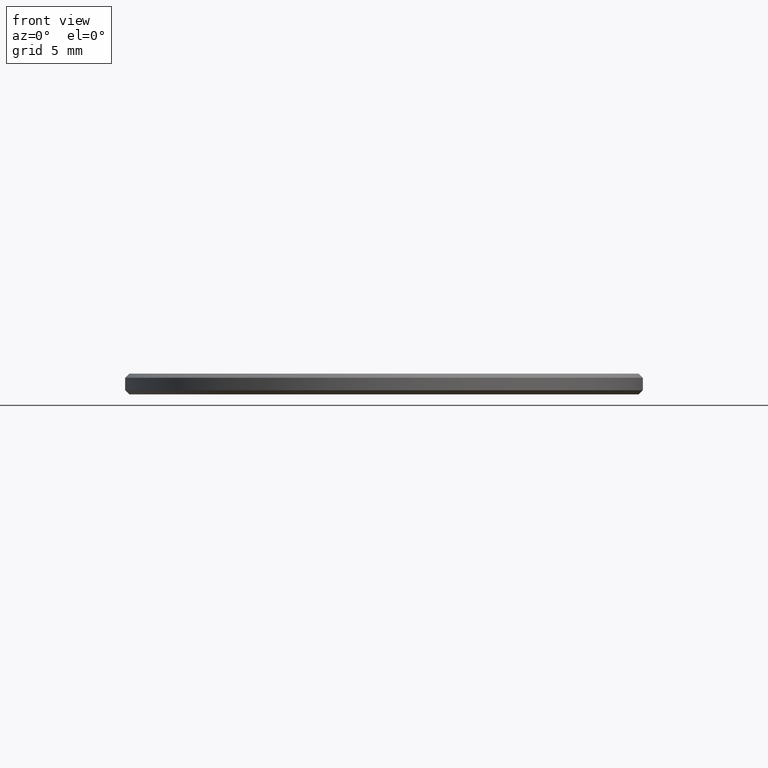
[diagram: clean part render]
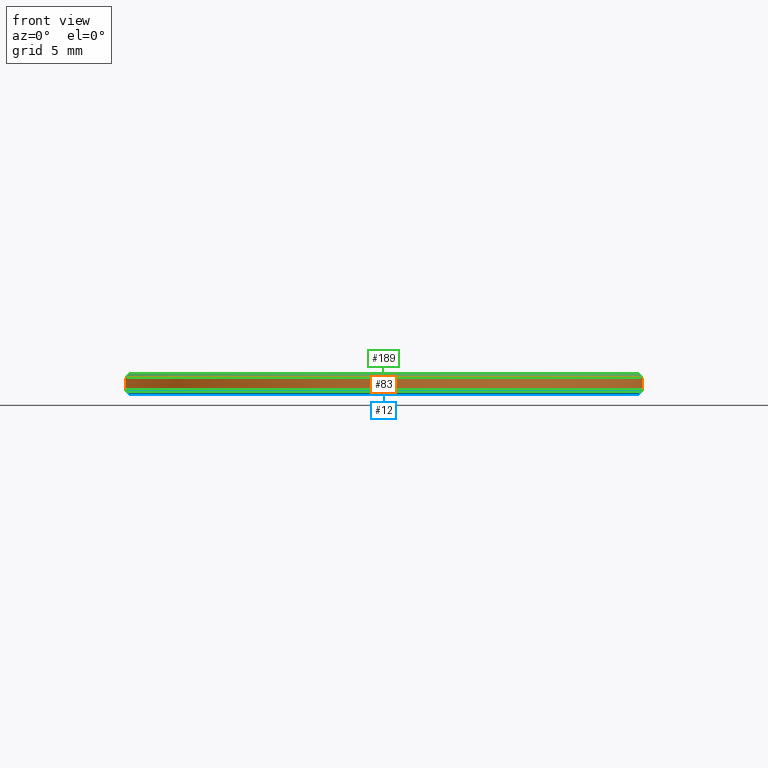
[diagram: same view with three faces highlighted in distinct colors, each labeled with its STEP entity id]
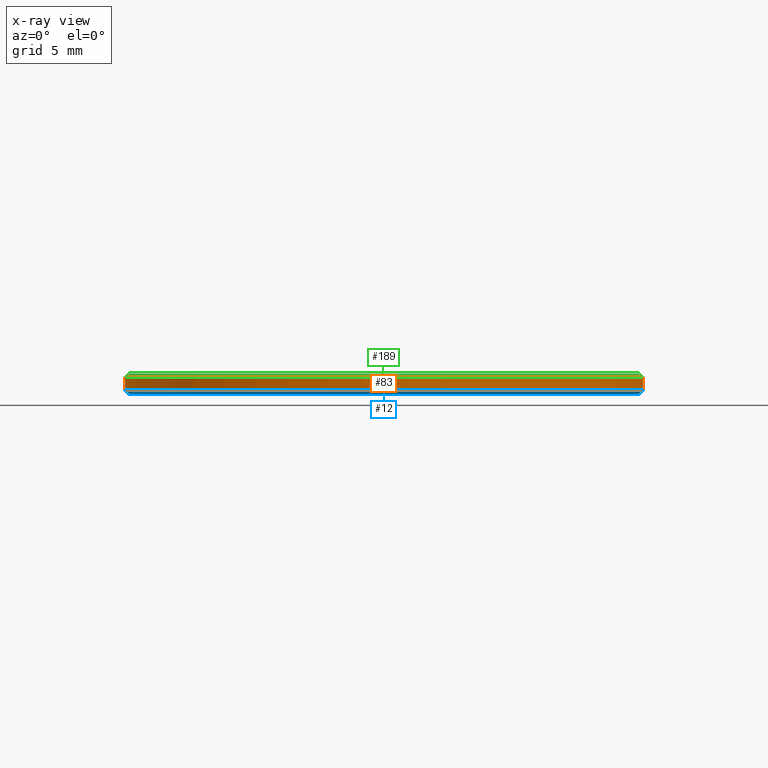
[diagram: x-ray of the same camera — body ghosted, the three highlighted faces saturated]
A machine part, front view with three faces highlighted in distinct colors.
The next image is the same camera in x-ray (body ghosted, the three faces saturated) — at least one of them is partly hidden behind the body in this view.
Their STEP definitions:

[orange] entity #83 — the highlighted cylindrical surface (partial cylindrical patch) has radius 12.5 mm, axis along (-0, -0, -1).
#5 = DIRECTION ( 'NONE',  ( 0.000000000000000000, 0.000000000000000000, -1.000000000000000000 ) ) ;
#6 = DIRECTION ( 'NONE',  ( 1.000000000000000000, 0.000000000000000000, 0.000000000000000000 ) ) ;
#7 = CIRCLE ( 'NONE', #60, 12.50000000000000000 ) ;
#23 = VERTEX_POINT ( 'NONE', #94 ) ;
#26 = CARTESIAN_POINT ( 'NONE',  ( 0.000000000000000000, 0.000000000000000000, 1.000000000000000000 ) ) ;
#31 = VECTOR ( 'NONE', #169, 1000.000000000000000 ) ;
#33 = AXIS2_PLACEMENT_3D ( 'NONE', #26, #139, #101 ) ;
#42 = CARTESIAN_POINT ( 'NONE',  ( -12.50000000000000000, 0.000000000000000000, 1.000000000000000000 ) ) ;
#45 = EDGE_CURVE ( 'NONE', #115, #92, #98, .T. ) ;
#46 = AXIS2_PLACEMENT_3D ( 'NONE', #208, #5, #89 ) ;
#51 = DIRECTION ( 'NONE',  ( -0.000000000000000000, -0.000000000000000000, -1.000000000000000000 ) ) ;
#55 = ORIENTED_EDGE ( 'NONE', *, *, #69, .F. ) ;
#60 = AXIS2_PLACEMENT_3D ( 'NONE', #116, #68, #6 ) ;
#64 = EDGE_CURVE ( 'NONE', #92, #240, #7, .T. ) ;
#65 = CYLINDRICAL_SURFACE ( 'NONE', #33, 12.50000000000000000 ) ;
#68 = DIRECTION ( 'NONE',  ( -0.000000000000000000, -0.000000000000000000, 1.000000000000000000 ) ) ;
#69 = EDGE_CURVE ( 'NONE', #23, #240, #230, .T. ) ;
#73 = ORIENTED_EDGE ( 'NONE', *, *, #64, .T. ) ;
#83 = ADVANCED_FACE ( 'NONE', ( #140 ), #65, .T. ) ;
#89 = DIRECTION ( 'NONE',  ( 1.000000000000000000, 0.000000000000000000, 0.000000000000000000 ) ) ;
#90 = ORIENTED_EDGE ( 'NONE', *, *, #45, .T. ) ;
#91 = CIRCLE ( 'NONE', #46, 12.50000000000000000 ) ;
#92 = VERTEX_POINT ( 'NONE', #171 ) ;
#94 = CARTESIAN_POINT ( 'NONE',  ( 12.50000000000000000, 1.530808498934191521E-15, 0.8000000000000029310 ) ) ;
#98 = LINE ( 'NONE', #42, #31 ) ;
#101 = DIRECTION ( 'NONE',  ( -1.000000000000000000, 0.000000000000000000, 0.000000000000000000 ) ) ;
#115 = VERTEX_POINT ( 'NONE', #190 ) ;
#116 = CARTESIAN_POINT ( 'NONE',  ( 0.000000000000000000, 0.000000000000000000, 0.1999999999999987899 ) ) ;
#127 = EDGE_CURVE ( 'NONE', #23, #115, #91, .T. ) ;
#135 = CARTESIAN_POINT ( 'NONE',  ( 12.50000000000000000, 1.530808498934191521E-15, 1.000000000000000000 ) ) ;
#139 = DIRECTION ( 'NONE',  ( -0.000000000000000000, -0.000000000000000000, -1.000000000000000000 ) ) ;
#140 = FACE_OUTER_BOUND ( 'NONE', #163, .T. ) ;
#145 = VECTOR ( 'NONE', #51, 1000.000000000000000 ) ;
#163 = EDGE_LOOP ( 'NONE', ( #55, #178, #90, #73 ) ) ;
#169 = DIRECTION ( 'NONE',  ( -0.000000000000000000, -0.000000000000000000, -1.000000000000000000 ) ) ;
#171 = CARTESIAN_POINT ( 'NONE',  ( -12.50000000000000000, 0.000000000000000000, 0.1999999999999987899 ) ) ;
#178 = ORIENTED_EDGE ( 'NONE', *, *, #127, .T. ) ;
#190 = CARTESIAN_POINT ( 'NONE',  ( -12.50000000000000000, 0.000000000000000000, 0.8000000000000029310 ) ) ;
#208 = CARTESIAN_POINT ( 'NONE',  ( 0.000000000000000000, 0.000000000000000000, 0.8000000000000029310 ) ) ;
#230 = LINE ( 'NONE', #135, #145 ) ;
#239 = CARTESIAN_POINT ( 'NONE',  ( 12.50000000000000000, 1.530808498934191521E-15, 0.1999999999999987899 ) ) ;
#240 = VERTEX_POINT ( 'NONE', #239 ) ;

[blue] entity #12 — the highlighted conical surface has half-angle 45 deg.
#2 = CARTESIAN_POINT ( 'NONE',  ( 0.000000000000000000, 0.000000000000000000, 0.1999999999999987899 ) ) ;
#6 = DIRECTION ( 'NONE',  ( 1.000000000000000000, 0.000000000000000000, 0.000000000000000000 ) ) ;
#7 = CIRCLE ( 'NONE', #60, 12.50000000000000000 ) ;
#9 = DIRECTION ( 'NONE',  ( 0.7071067811865474617, 0.000000000000000000, 0.7071067811865474617 ) ) ;
#12 = ADVANCED_FACE ( 'NONE', ( #203 ), #196, .T. ) ;
#19 = VECTOR ( 'NONE', #9, 1000.000000000000114 ) ;
#30 = CARTESIAN_POINT ( 'NONE',  ( 0.000000000000000000, 0.000000000000000000, 0.000000000000000000 ) ) ;
#48 = EDGE_CURVE ( 'NONE', #151, #92, #152, .T. ) ;
#60 = AXIS2_PLACEMENT_3D ( 'NONE', #116, #68, #6 ) ;
#61 = VERTEX_POINT ( 'NONE', #100 ) ;
#64 = EDGE_CURVE ( 'NONE', #92, #240, #7, .T. ) ;
#68 = DIRECTION ( 'NONE',  ( -0.000000000000000000, -0.000000000000000000, 1.000000000000000000 ) ) ;
#77 = AXIS2_PLACEMENT_3D ( 'NONE', #30, #188, #85 ) ;
#78 = DIRECTION ( 'NONE',  ( -0.7071067811865474617, 8.659560562354932858E-17, 0.7071067811865474617 ) ) ;
#80 = DIRECTION ( 'NONE',  ( -0.000000000000000000, -0.000000000000000000, 1.000000000000000000 ) ) ;
#81 = DIRECTION ( 'NONE',  ( 1.000000000000000000, 0.000000000000000000, 0.000000000000000000 ) ) ;
#85 = DIRECTION ( 'NONE',  ( 1.000000000000000000, 0.000000000000000000, 0.000000000000000000 ) ) ;
#92 = VERTEX_POINT ( 'NONE', #171 ) ;
#100 = CARTESIAN_POINT ( 'NONE',  ( 12.30000000000000249, 0.000000000000000000, 0.000000000000000000 ) ) ;
#111 = ORIENTED_EDGE ( 'NONE', *, *, #150, .F. ) ;
#116 = CARTESIAN_POINT ( 'NONE',  ( 0.000000000000000000, 0.000000000000000000, 0.1999999999999987899 ) ) ;
#142 = CIRCLE ( 'NONE', #77, 12.30000000000000249 ) ;
#147 = ORIENTED_EDGE ( 'NONE', *, *, #48, .F. ) ;
#150 = EDGE_CURVE ( 'NONE', #61, #151, #142, .T. ) ;
#151 = VERTEX_POINT ( 'NONE', #228 ) ;
#152 = LINE ( 'NONE', #205, #183 ) ;
#158 = LINE ( 'NONE', #175, #19 ) ;
#171 = CARTESIAN_POINT ( 'NONE',  ( -12.50000000000000000, 0.000000000000000000, 0.1999999999999987899 ) ) ;
#175 = CARTESIAN_POINT ( 'NONE',  ( 12.50000000000000000, 0.000000000000000000, 0.1999999999999987899 ) ) ;
#183 = VECTOR ( 'NONE', #78, 1000.000000000000114 ) ;
#185 = EDGE_LOOP ( 'NONE', ( #147, #111, #202, #219 ) ) ;
#187 = EDGE_CURVE ( 'NONE', #61, #240, #158, .T. ) ;
#188 = DIRECTION ( 'NONE',  ( -0.000000000000000000, -0.000000000000000000, -1.000000000000000000 ) ) ;
#196 = CONICAL_SURFACE ( 'NONE', #207, 12.50000000000000000, 0.7853981633974482790 ) ;
#202 = ORIENTED_EDGE ( 'NONE', *, *, #187, .T. ) ;
#203 = FACE_OUTER_BOUND ( 'NONE', #185, .T. ) ;
#205 = CARTESIAN_POINT ( 'NONE',  ( -12.50000000000000000, 1.530808498934191521E-15, 0.1999999999999987899 ) ) ;
#207 = AXIS2_PLACEMENT_3D ( 'NONE', #2, #80, #81 ) ;
#219 = ORIENTED_EDGE ( 'NONE', *, *, #64, .F. ) ;
#228 = CARTESIAN_POINT ( 'NONE',  ( -12.30000000000000249, 1.518562030942718164E-15, 0.000000000000000000 ) ) ;
#239 = CARTESIAN_POINT ( 'NONE',  ( 12.50000000000000000, 1.530808498934191521E-15, 0.1999999999999987899 ) ) ;
#240 = VERTEX_POINT ( 'NONE', #239 ) ;

[green] entity #189 — the highlighted conical surface has half-angle 45 deg.
#5 = DIRECTION ( 'NONE',  ( 0.000000000000000000, 0.000000000000000000, -1.000000000000000000 ) ) ;
#10 = CARTESIAN_POINT ( 'NONE',  ( 12.29999999999999893, 1.518562030942717967E-15, 1.000000000000000000 ) ) ;
#23 = VERTEX_POINT ( 'NONE', #94 ) ;
#28 = DIRECTION ( 'NONE',  ( 1.000000000000000000, 0.000000000000000000, 0.000000000000000000 ) ) ;
#29 = EDGE_CURVE ( 'NONE', #213, #23, #39, .T. ) ;
#39 = LINE ( 'NONE', #182, #87 ) ;
#43 = ORIENTED_EDGE ( 'NONE', *, *, #154, .F. ) ;
#46 = AXIS2_PLACEMENT_3D ( 'NONE', #208, #5, #89 ) ;
#62 = CIRCLE ( 'NONE', #126, 12.29999999999999893 ) ;
#82 = CONICAL_SURFACE ( 'NONE', #106, 12.29999999999999893, 0.7853981633974612686 ) ;
#87 = VECTOR ( 'NONE', #226, 1000.000000000000000 ) ;
#88 = FACE_OUTER_BOUND ( 'NONE', #160, .T. ) ;
#89 = DIRECTION ( 'NONE',  ( 1.000000000000000000, 0.000000000000000000, 0.000000000000000000 ) ) ;
#91 = CIRCLE ( 'NONE', #46, 12.50000000000000000 ) ;
#94 = CARTESIAN_POINT ( 'NONE',  ( 12.50000000000000000, 1.530808498934191521E-15, 0.8000000000000029310 ) ) ;
#99 = CARTESIAN_POINT ( 'NONE',  ( -12.29999999999999893, 0.000000000000000000, 1.000000000000000000 ) ) ;
#106 = AXIS2_PLACEMENT_3D ( 'NONE', #229, #210, #212 ) ;
#110 = EDGE_CURVE ( 'NONE', #224, #115, #172, .T. ) ;
#115 = VERTEX_POINT ( 'NONE', #190 ) ;
#120 = DIRECTION ( 'NONE',  ( 0.000000000000000000, 0.000000000000000000, 1.000000000000000000 ) ) ;
#125 = ORIENTED_EDGE ( 'NONE', *, *, #110, .T. ) ;
#126 = AXIS2_PLACEMENT_3D ( 'NONE', #209, #120, #28 ) ;
#127 = EDGE_CURVE ( 'NONE', #23, #115, #91, .T. ) ;
#141 = CARTESIAN_POINT ( 'NONE',  ( -12.29999999999999893, 0.000000000000000000, 1.000000000000000000 ) ) ;
#149 = ORIENTED_EDGE ( 'NONE', *, *, #29, .F. ) ;
#154 = EDGE_CURVE ( 'NONE', #224, #213, #62, .T. ) ;
#155 = DIRECTION ( 'NONE',  ( -0.7071067811865566766, 0.000000000000000000, -0.7071067811865383579 ) ) ;
#160 = EDGE_LOOP ( 'NONE', ( #149, #43, #125, #216 ) ) ;
#172 = LINE ( 'NONE', #141, #211 ) ;
#182 = CARTESIAN_POINT ( 'NONE',  ( 12.29999999999999893, 1.506315562951244216E-15, 1.000000000000000000 ) ) ;
#189 = ADVANCED_FACE ( 'NONE', ( #88 ), #82, .T. ) ;
#190 = CARTESIAN_POINT ( 'NONE',  ( -12.50000000000000000, 0.000000000000000000, 0.8000000000000029310 ) ) ;
#208 = CARTESIAN_POINT ( 'NONE',  ( 0.000000000000000000, 0.000000000000000000, 0.8000000000000029310 ) ) ;
#209 = CARTESIAN_POINT ( 'NONE',  ( 0.000000000000000000, 0.000000000000000000, 1.000000000000000000 ) ) ;
#210 = DIRECTION ( 'NONE',  ( 0.000000000000000000, 0.000000000000000000, -1.000000000000000000 ) ) ;
#211 = VECTOR ( 'NONE', #155, 1000.000000000000000 ) ;
#212 = DIRECTION ( 'NONE',  ( -1.000000000000000000, 0.000000000000000000, 0.000000000000000000 ) ) ;
#213 = VERTEX_POINT ( 'NONE', #10 ) ;
#216 = ORIENTED_EDGE ( 'NONE', *, *, #127, .F. ) ;
#224 = VERTEX_POINT ( 'NONE', #99 ) ;
#226 = DIRECTION ( 'NONE',  ( 0.7071067811865566766, 8.659560562355045024E-17, -0.7071067811865383579 ) ) ;
#229 = CARTESIAN_POINT ( 'NONE',  ( 0.000000000000000000, 0.000000000000000000, 1.000000000000000000 ) ) ;